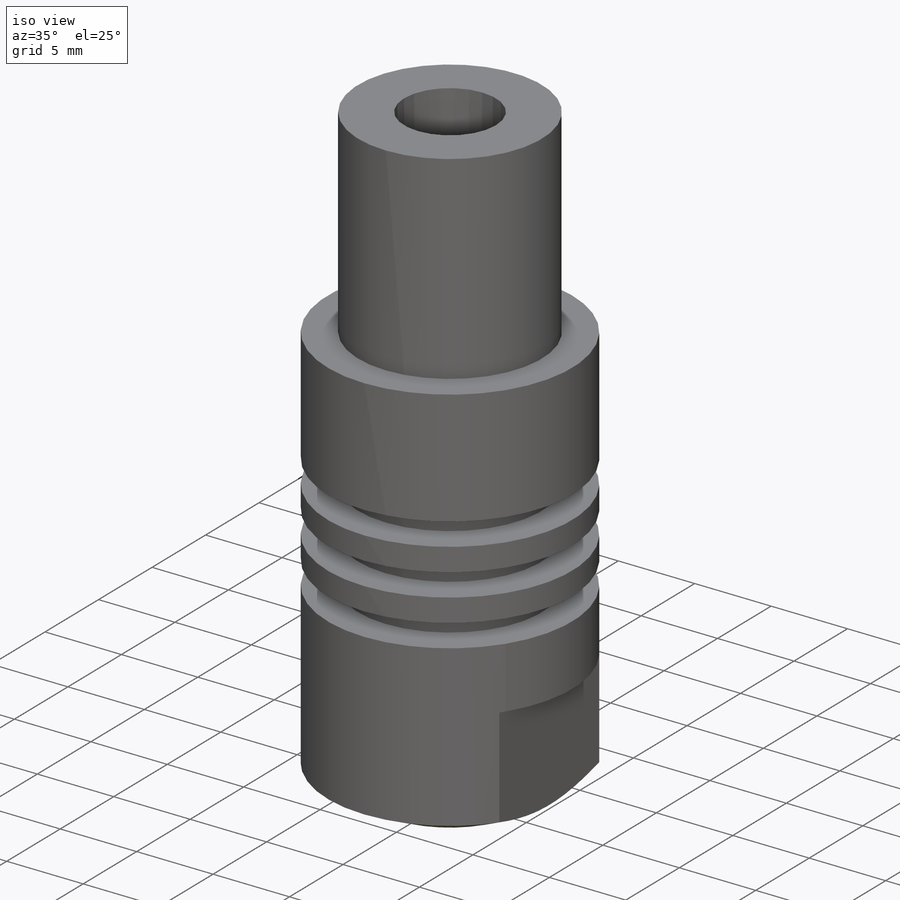
[diagram: iso view]
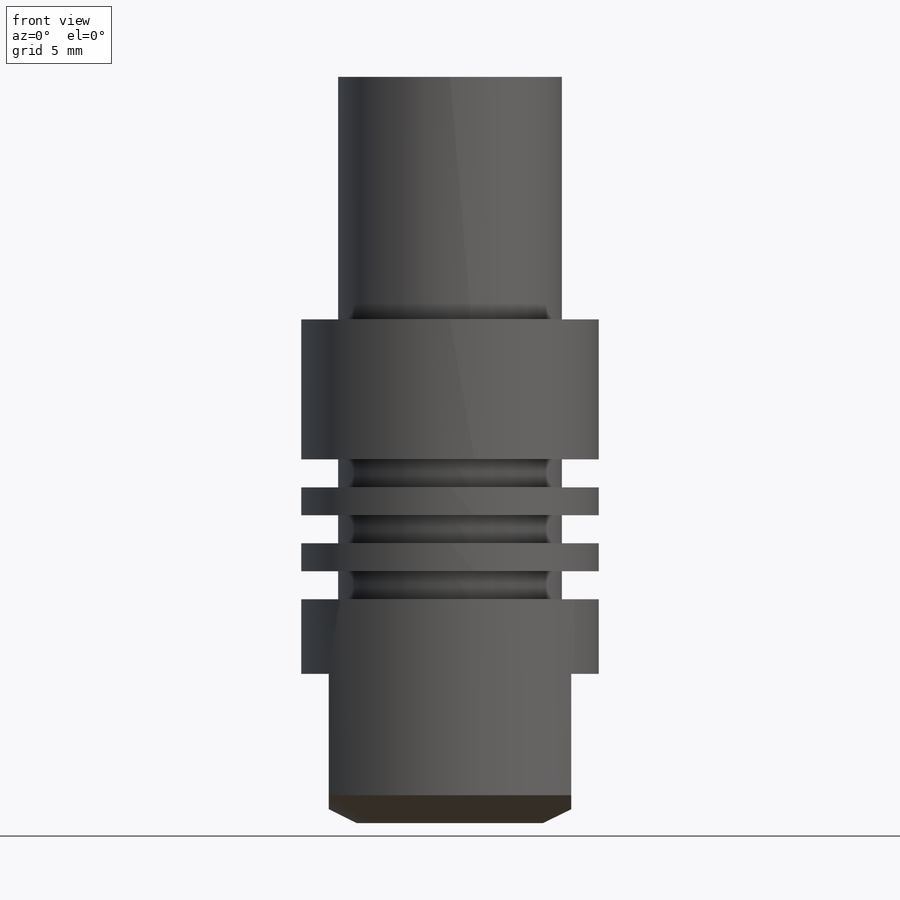
[diagram: front view]
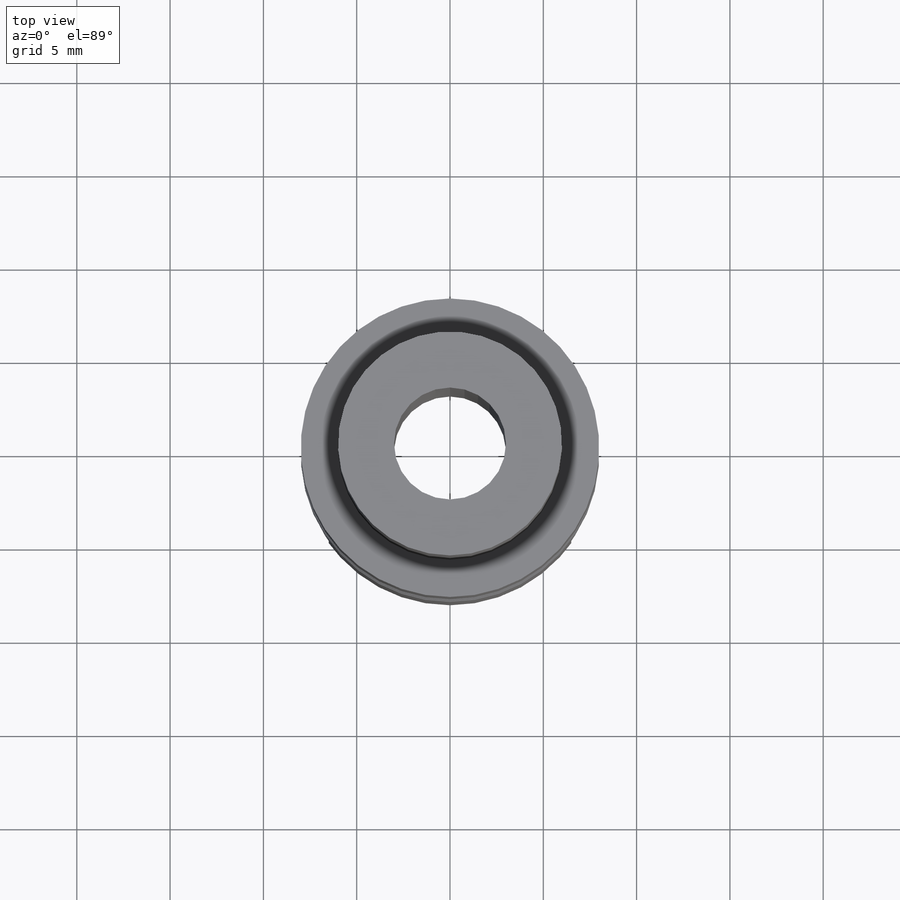
[diagram: top view]
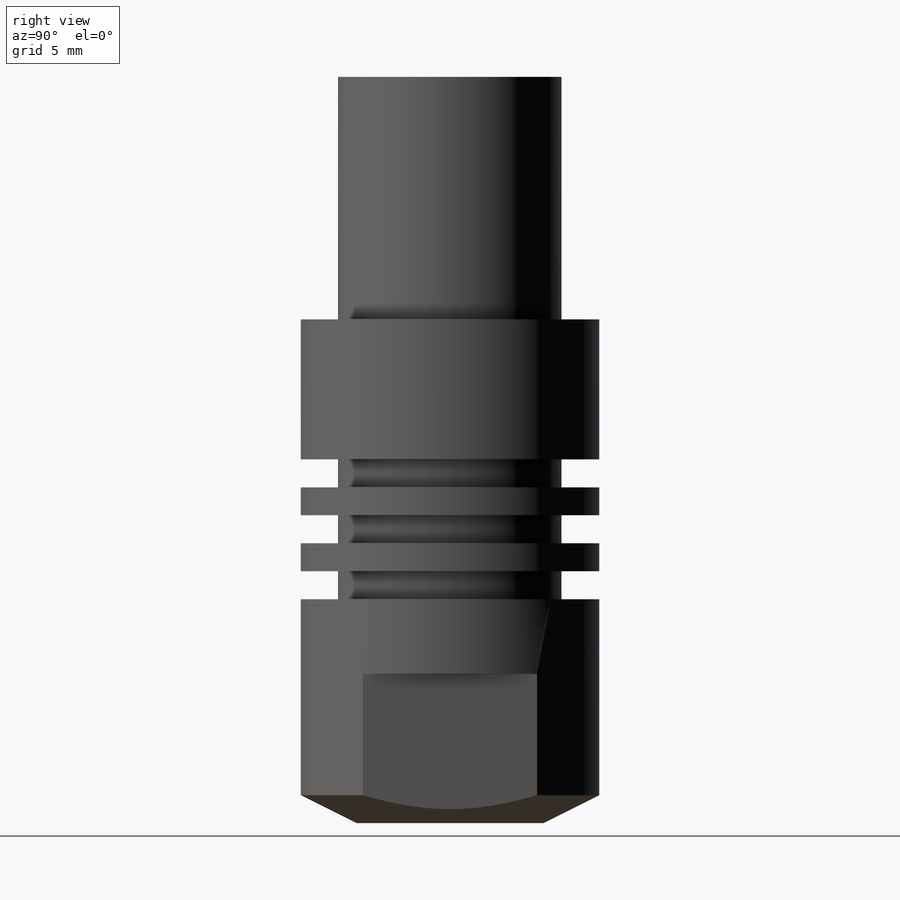
[diagram: right view]
SOLIDWORKS PART (.sldprt)
format: sldprt  version: not decoded by parser v0  size: 228,864 bytes
history: native  units: mm
features: sketch x6, plane x3, cut_extrude x3, material x1, revolve x1, hole x1, thread x1 (+9 scaffold rows collapsed)
feature tree (25):
  scaffold x9  (default folders/planes/origin — collapsed)
  material  "Gomma"
  plane  "Piano frontale"
  plane  "Piano superiore"
  plane  "Piano destro"
  sketch  "Schizzo1"  dims[c1.D1=1.5mm c1.D2=16.0mm c1.D3=2.0mm c1.D4=40.0mm c1.D5=12.0mm c1.D6=13.0mm c1.D7=4.6mm c1.D8=1.5mm c1.D9=1.7mm c1.D10=~3.998088mm c2.D10=90.0deg c3.D10=10.0mm c3.D9=6.0mm c3.D11=12.0mm c3.D12=1.5mm c3.D13=1.5mm c3.D7=8.0mm c3.D6=8.0mm c4.D7=8.0mm]
  revolve  "Rivoluzione1"  Angle=360deg
  sketch  "Schizzo2"  dims[D1=32.0mm D2=1.5mm D3=32.0mm]
  cut_extrude  "Taglio-Estrusione1"  [1 undecoded]
  sketch  "Schizzo7"  dims[D1=~2.611784mm]
  cut_extrude  "Taglio-Estrusione2"  [1 undecoded]
  hole  "Foro filettato M8-1"  Diameter=6.8mm Depth=12mm
  sketch  "Schizzo9"
  sketch  "Schizzo8"  dims[hole-wizard template sketch: 47 standard entries collapsed; hole parameters kept: c15.Tap Drill Depth=12.0mm c15.D3=~14.816244mm c15.Drill Angle=118.0deg]
  thread  "Filettatura del foro3"  Diameter=12mm  [1 undecoded]
  sketch  "Schizzo10"  dims[D1=12.0mm]
  cut_extrude  "Taglio-Estrusione3"  Depth=13mm
decode coverage: 9 of 12 modeling features carry decoded parameters
note: ~ marks probable driven/reference dimensions
note: 3 parameter values undecoded
note: suppression state not decoded; provenance and decode notes live in map.json
